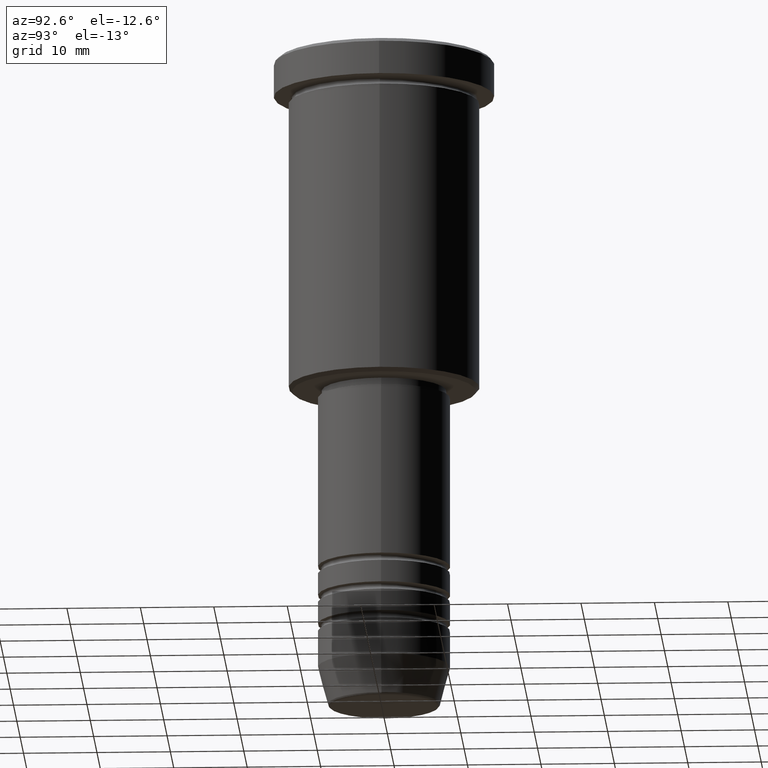
[diagram: clean part render]
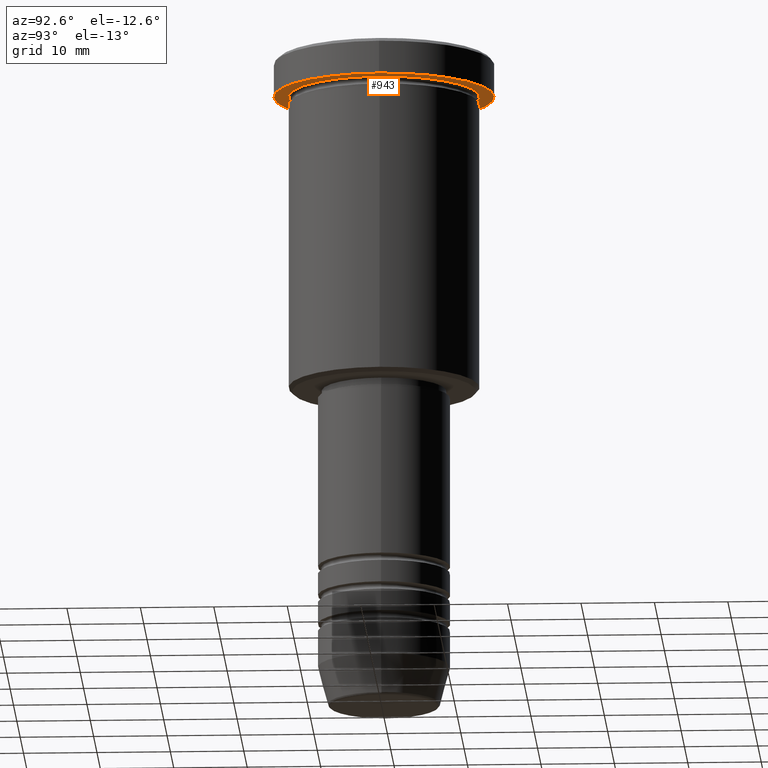
[diagram: same view with one face highlighted and labeled with its STEP entity id]
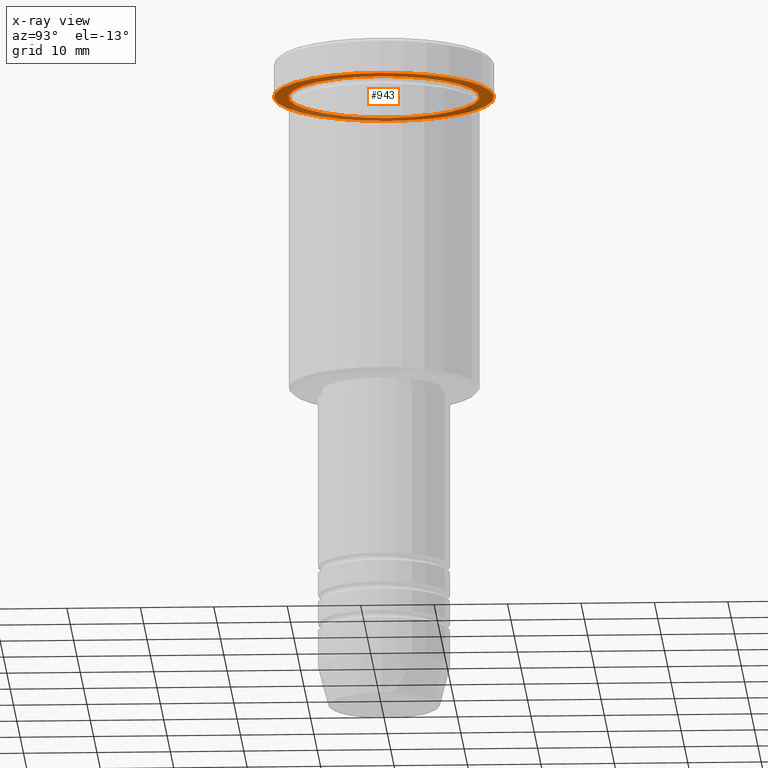
[diagram: x-ray of the same camera — body ghosted, the highlighted face saturated]
A machine part, auxiliary view. The second image highlights one B-rep face of the part: STEP entity #943.
The next image is the same camera in x-ray: the body ghosted, the highlighted face saturated — about 35% of this face is hidden behind the body in this view.
In plain terms, the highlighted planar face has unit normal (0, 0, -1).
Its self-contained STEP definition (entity closure, byte-faithful):
#48 = ORIENTED_EDGE ( 'NONE', *, *, #279, .T. ) ;
#49 = CARTESIAN_POINT ( 'NONE',  ( 0.000000000000000000, 15.00000000000000000, -4.999999999999999112 ) ) ;
#99 = CARTESIAN_POINT ( 'NONE',  ( -15.00000000000000000, 1.836970198721029589E-15, -4.999999999999999112 ) ) ;
#146 = AXIS2_PLACEMENT_3D ( 'NONE', #204, #183, #835 ) ;
#183 = DIRECTION ( 'NONE',  ( -0.000000000000000000, -0.000000000000000000, 1.000000000000000000 ) ) ;
#192 = DIRECTION ( 'NONE',  ( -0.000000000000000000, -0.000000000000000000, 1.000000000000000000 ) ) ;
#204 = CARTESIAN_POINT ( 'NONE',  ( 0.000000000000000000, 0.000000000000000000, -4.999999999999999112 ) ) ;
#241 = CARTESIAN_POINT ( 'NONE',  ( -13.00000000000000000, 0.000000000000000000, -4.999999999999999112 ) ) ;
#279 = EDGE_CURVE ( 'NONE', #358, #945, #566, .T. ) ;
#300 = FACE_BOUND ( 'NONE', #1124, .T. ) ;
#312 = AXIS2_PLACEMENT_3D ( 'NONE', #1035, #869, #1130 ) ;
#358 = VERTEX_POINT ( 'NONE', #561 ) ;
#371 = DIRECTION ( 'NONE',  ( 1.000000000000000000, 0.000000000000000000, 0.000000000000000000 ) ) ;
#412 = DIRECTION ( 'NONE',  ( 0.000000000000000000, 0.000000000000000000, -1.000000000000000000 ) ) ;
#426 = CARTESIAN_POINT ( 'NONE',  ( 0.000000000000000000, 0.000000000000000000, -4.999999999999999112 ) ) ;
#463 = ORIENTED_EDGE ( 'NONE', *, *, #863, .T. ) ;
#561 = CARTESIAN_POINT ( 'NONE',  ( 13.00000000000000000, 1.592040838891559095E-15, -4.999999999999999112 ) ) ;
#566 = CIRCLE ( 'NONE', #146, 13.00000000000000000 ) ;
#621 = DIRECTION ( 'NONE',  ( -0.000000000000000000, -0.000000000000000000, 1.000000000000000000 ) ) ;
#645 = AXIS2_PLACEMENT_3D ( 'NONE', #426, #621, #717 ) ;
#666 = VERTEX_POINT ( 'NONE', #99 ) ;
#671 = FACE_OUTER_BOUND ( 'NONE', #951, .T. ) ;
#717 = DIRECTION ( 'NONE',  ( 1.000000000000000000, 0.000000000000000000, 0.000000000000000000 ) ) ;
#730 = CARTESIAN_POINT ( 'NONE',  ( 0.000000000000000000, 0.000000000000000000, -4.999999999999999112 ) ) ;
#774 = VERTEX_POINT ( 'NONE', #1109 ) ;
#775 = PLANE ( 'NONE',  #1177 ) ;
#783 = CIRCLE ( 'NONE', #645, 15.00000000000000000 ) ;
#835 = DIRECTION ( 'NONE',  ( -1.000000000000000000, 0.000000000000000000, 0.000000000000000000 ) ) ;
#836 = CIRCLE ( 'NONE', #312, 13.00000000000000000 ) ;
#837 = AXIS2_PLACEMENT_3D ( 'NONE', #730, #192, #371 ) ;
#863 = EDGE_CURVE ( 'NONE', #945, #358, #836, .T. ) ;
#869 = DIRECTION ( 'NONE',  ( -0.000000000000000000, -0.000000000000000000, 1.000000000000000000 ) ) ;
#943 = ADVANCED_FACE ( 'NONE', ( #300, #671 ), #775, .T. ) ;
#945 = VERTEX_POINT ( 'NONE', #241 ) ;
#951 = EDGE_LOOP ( 'NONE', ( #1134, #1148 ) ) ;
#994 = EDGE_CURVE ( 'NONE', #666, #774, #783, .T. ) ;
#1026 = CIRCLE ( 'NONE', #837, 15.00000000000000000 ) ;
#1035 = CARTESIAN_POINT ( 'NONE',  ( 0.000000000000000000, 0.000000000000000000, -4.999999999999999112 ) ) ;
#1064 = DIRECTION ( 'NONE',  ( -1.000000000000000000, 0.000000000000000000, -0.000000000000000000 ) ) ;
#1109 = CARTESIAN_POINT ( 'NONE',  ( 15.00000000000000000, 0.000000000000000000, -4.999999999999999112 ) ) ;
#1123 = EDGE_CURVE ( 'NONE', #774, #666, #1026, .T. ) ;
#1124 = EDGE_LOOP ( 'NONE', ( #463, #48 ) ) ;
#1130 = DIRECTION ( 'NONE',  ( -1.000000000000000000, 0.000000000000000000, 0.000000000000000000 ) ) ;
#1134 = ORIENTED_EDGE ( 'NONE', *, *, #1123, .F. ) ;
#1148 = ORIENTED_EDGE ( 'NONE', *, *, #994, .F. ) ;
#1177 = AXIS2_PLACEMENT_3D ( 'NONE', #49, #412, #1064 ) ;